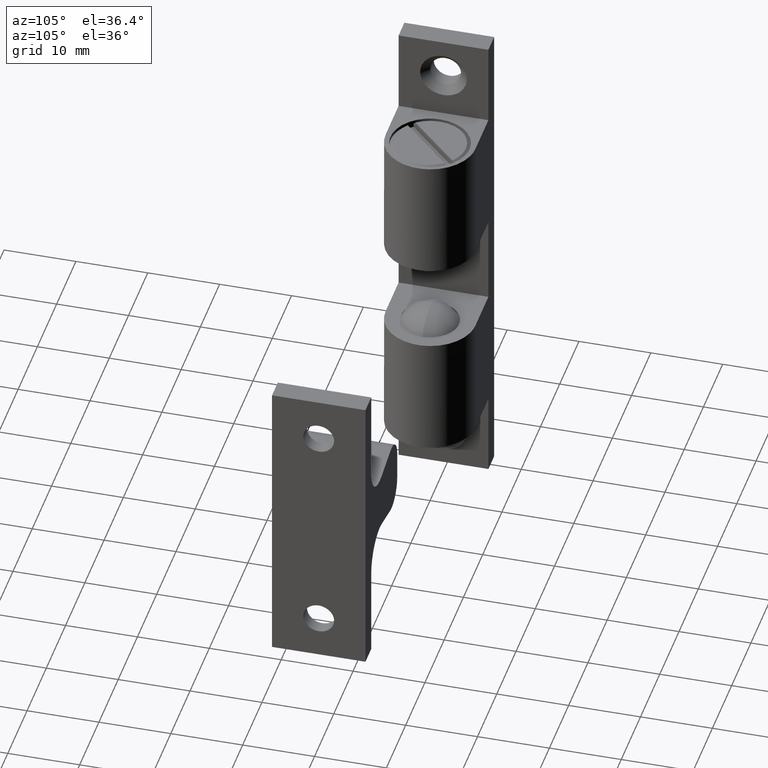
[diagram: clean part render]
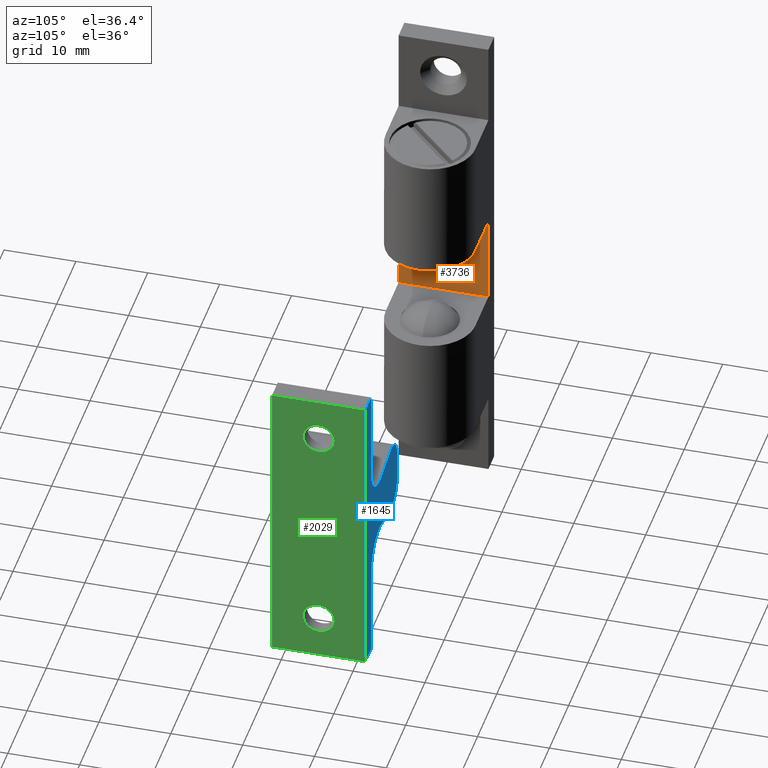
[diagram: same view with three faces highlighted in distinct colors, each labeled with its STEP entity id]
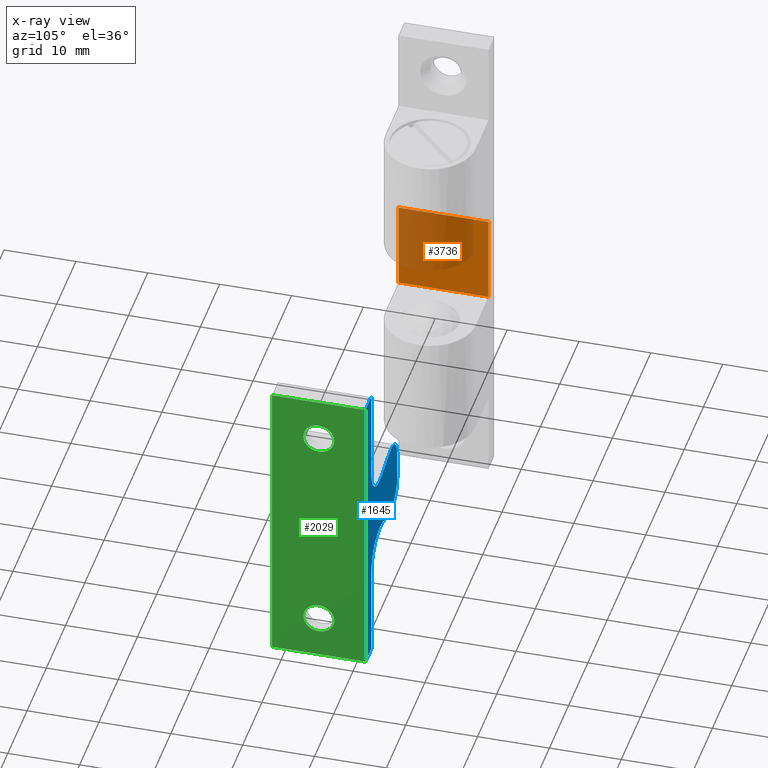
[diagram: x-ray of the same camera — body ghosted, the three highlighted faces saturated]
A machine part, auxiliary view with three faces highlighted in distinct colors.
The next image is the same camera in x-ray (body ghosted, the three faces saturated) — at least one of them is partly hidden behind the body in this view.
Their STEP definitions:

[orange] entity #3736 — the highlighted face is a freeform B-spline surface patch.
#3701=CARTESIAN_POINT('',(3.0,-6.874374975772575,6.874269863432652));
#3702=CARTESIAN_POINT('',(3.0,-6.874374975772575,-6.874370310463909));
#3703=CARTESIAN_POINT('',(3.0,6.874375311048702,6.874269863432652));
#3704=CARTESIAN_POINT('',(3.0,6.874375311048702,-6.874370310463909));
#3705=B_SPLINE_SURFACE_WITH_KNOTS('',1,1,((#3701,#3703),(#3702,#3704)),.UNSPECIFIED.,.F.,.F.,.U.,(2,2),(2,2),(0.0,13.748640173896559),(0.0,13.748750286821281),.UNSPECIFIED.);
#3706=CARTESIAN_POINT('',(3.0,6.250000000000000,6.249900000000000));
#3707=VERTEX_POINT('',#3706);
#3708=CARTESIAN_POINT('',(3.0,6.250000000000000,-6.250000000000000));
#3709=VERTEX_POINT('',#3708);
#3710=CARTESIAN_POINT('',(3.0,6.250000000000000,6.249900000000000));
#3711=CARTESIAN_POINT('',(3.0,6.250000000000000,-6.250000000000000));
#3712=QUASI_UNIFORM_CURVE('',1,(#3710,#3711),.UNSPECIFIED.,.F.,.U.);
#3713=EDGE_CURVE('',#3707,#3709,#3712,.T.);
#3714=ORIENTED_EDGE('',*,*,#3713,.F.);
#3715=CARTESIAN_POINT('',(3.0,-6.250000000000000,6.249900000000000));
#3716=VERTEX_POINT('',#3715);
#3717=CARTESIAN_POINT('',(3.0,-6.250000000000000,6.249900000000000));
#3718=CARTESIAN_POINT('',(3.0,6.250000000000000,6.249900000000000));
#3719=QUASI_UNIFORM_CURVE('',1,(#3717,#3718),.UNSPECIFIED.,.F.,.U.);
#3720=EDGE_CURVE('',#3716,#3707,#3719,.T.);
#3721=ORIENTED_EDGE('',*,*,#3720,.F.);
#3722=CARTESIAN_POINT('',(3.0,-6.250000000000000,-6.250000000000000));
#3723=VERTEX_POINT('',#3722);
#3724=CARTESIAN_POINT('',(3.0,-6.250000000000000,6.249900000000000));
#3725=CARTESIAN_POINT('',(3.0,-6.250000000000000,-6.250000000000000));
#3726=QUASI_UNIFORM_CURVE('',1,(#3724,#3725),.UNSPECIFIED.,.F.,.U.);
#3727=EDGE_CURVE('',#3716,#3723,#3726,.T.);
#3728=ORIENTED_EDGE('',*,*,#3727,.T.);
#3729=CARTESIAN_POINT('',(3.0,-6.250000000000000,-6.250000000000000));
#3730=CARTESIAN_POINT('',(3.0,6.250000000000000,-6.250000000000000));
#3731=QUASI_UNIFORM_CURVE('',1,(#3729,#3730),.UNSPECIFIED.,.F.,.U.);
#3732=EDGE_CURVE('',#3723,#3709,#3731,.T.);
#3733=ORIENTED_EDGE('',*,*,#3732,.T.);
#3734=EDGE_LOOP('',(#3714,#3721,#3728,#3733));
#3735=FACE_OUTER_BOUND('',#3734,.T.);
#3736=ADVANCED_FACE('',(#3735),#3705,.T.);

[blue] entity #1645 — the highlighted face is a freeform B-spline surface patch.
#1514=CARTESIAN_POINT('',(50.466134724906070,6.500000000000000,23.097796106391069));
#1515=CARTESIAN_POINT('',(68.614488997723598,6.500000000000000,23.097796106391069));
#1516=CARTESIAN_POINT('',(50.466134724906070,6.500000000000000,-23.097896106391079));
#1517=CARTESIAN_POINT('',(68.614488997723598,6.500000000000000,-23.097896106391079));
#1518=B_SPLINE_SURFACE_WITH_KNOTS('',1,1,((#1514,#1516),(#1515,#1517)),.UNSPECIFIED.,.F.,.F.,.U.,(2,2),(2,2),(0.0,18.148354272817532),(0.0,46.195692212782141),.UNSPECIFIED.);
#1519=CARTESIAN_POINT('',(54.938705783282600,6.500000000000000,-4.929092738337640));
#1520=VERTEX_POINT('',#1519);
#1521=CARTESIAN_POINT('',(59.361311049946799,6.500000000000000,-3.996800000000000));
#1522=VERTEX_POINT('',#1521);
#1523=CARTESIAN_POINT('',(54.938705783282600,6.500000000000000,-4.929092738337640));
#1524=CARTESIAN_POINT('',(59.361311049946799,6.500000000000000,-3.996800000000000));
#1525=QUASI_UNIFORM_CURVE('',1,(#1523,#1524),.UNSPECIFIED.,.F.,.U.);
#1526=EDGE_CURVE('',#1520,#1522,#1525,.T.);
#1527=ORIENTED_EDGE('',*,*,#1526,.F.);
#1528=CARTESIAN_POINT('',(51.290311049946602,6.500000000000000,-2.0));
#1529=VERTEX_POINT('',#1528);
#1530=CARTESIAN_POINT('',(51.290311049946702,6.500000000000000,-2.0));
#1531=CARTESIAN_POINT('',(51.290311049946695,6.500000000000000,-3.438677927375774));
#1532=CARTESIAN_POINT('',(52.412171571634147,6.500000000000000,-4.339357198036215));
#1533=CARTESIAN_POINT('',(53.534032093321599,6.500000000000000,-5.240036468696657));
#1534=CARTESIAN_POINT('',(54.938705783282600,6.500000000000000,-4.929092738337635));
#1542=(BOUNDED_CURVE()B_SPLINE_CURVE(2,(#1530,#1531,#1532,#1533,#1534),.UNSPECIFIED.,.F.,.U.)B_SPLINE_CURVE_WITH_KNOTS((3,2,3),(0.0,0.500000000000000,1.0),.UNSPECIFIED.)CURVE()GEOMETRIC_REPRESENTATION_ITEM()RATIONAL_B_SPLINE_CURVE((1.0,0.901678017024606,1.0,0.901678017024606,1.0))REPRESENTATION_ITEM(''));
#1543=EDGE_CURVE('',#1529,#1520,#1542,.T.);
#1544=ORIENTED_EDGE('',*,*,#1543,.F.);
#1545=CARTESIAN_POINT('',(51.290311049946702,6.500000000000000,1.999900000000000));
#1546=VERTEX_POINT('',#1545);
#1547=CARTESIAN_POINT('',(51.290311049946702,6.500000000000000,1.999900000000000));
#1548=CARTESIAN_POINT('',(51.290311049946602,6.500000000000000,-2.0));
#1549=QUASI_UNIFORM_CURVE('',1,(#1547,#1548),.UNSPECIFIED.,.F.,.U.);
#1550=EDGE_CURVE('',#1546,#1529,#1549,.T.);
#1551=ORIENTED_EDGE('',*,*,#1550,.F.);
#1552=CARTESIAN_POINT('',(54.908311108268698,6.500000000000000,4.935899987701701));
#1553=VERTEX_POINT('',#1552);
#1554=CARTESIAN_POINT('',(54.908311108268698,6.500000000000000,4.935899987701693));
#1555=CARTESIAN_POINT('',(53.509605669594599,6.500000000000000,5.230843741620612));
#1556=CARTESIAN_POINT('',(52.399634177030002,6.500000000000000,4.330104041237539));
#1557=CARTESIAN_POINT('',(51.289662684465398,6.500000000000000,3.429364340854467));
#1558=CARTESIAN_POINT('',(51.290311049946681,6.500000000000000,1.999900000000003));
#1566=(BOUNDED_CURVE()B_SPLINE_CURVE(2,(#1554,#1555,#1556,#1557,#1558),.UNSPECIFIED.,.F.,.U.)B_SPLINE_CURVE_WITH_KNOTS((3,2,3),(0.0,0.500000000000000,1.0),.UNSPECIFIED.)CURVE()GEOMETRIC_REPRESENTATION_ITEM()RATIONAL_B_SPLINE_CURVE((1.0,0.902710255952973,1.0,0.902710255952973,1.0))REPRESENTATION_ITEM(''));
#1567=EDGE_CURVE('',#1553,#1546,#1566,.T.);
#1568=ORIENTED_EDGE('',*,*,#1567,.F.);
#1569=CARTESIAN_POINT('',(59.338878029489301,6.500000000000000,4.001630430318795));
#1570=VERTEX_POINT('',#1569);
#1571=CARTESIAN_POINT('',(59.338878029489301,6.500000000000000,4.001630430318795));
#1572=CARTESIAN_POINT('',(54.908311108268698,6.500000000000000,4.935899987701701));
#1573=QUASI_UNIFORM_CURVE('',1,(#1571,#1572),.UNSPECIFIED.,.F.,.U.);
#1574=EDGE_CURVE('',#1570,#1553,#1573,.T.);
#1575=ORIENTED_EDGE('',*,*,#1574,.F.);
#1576=CARTESIAN_POINT('',(64.790311049946709,6.500000000000000,8.399900000000001));
#1577=VERTEX_POINT('',#1576);
#1578=CARTESIAN_POINT('',(59.338878029489301,6.500000000000000,4.001630430318818));
#1579=CARTESIAN_POINT('',(61.441603186784363,6.500000000000000,3.546769236410277));
#1580=CARTESIAN_POINT('',(63.115957118365493,6.500000000000000,4.897654392389232));
#1581=CARTESIAN_POINT('',(64.790311049946610,6.500000000000000,6.248539548368188));
#1582=CARTESIAN_POINT('',(64.790311049946610,6.500000000000000,8.399900000000001));
#1590=(BOUNDED_CURVE()B_SPLINE_CURVE(2,(#1578,#1579,#1580,#1581,#1582),.UNSPECIFIED.,.F.,.U.)B_SPLINE_CURVE_WITH_KNOTS((3,2,3),(0.0,0.500000000000000,1.0),.UNSPECIFIED.)CURVE()GEOMETRIC_REPRESENTATION_ITEM()RATIONAL_B_SPLINE_CURVE((1.0,0.902197691345286,1.0,0.902197691345286,1.0))REPRESENTATION_ITEM(''));
#1591=EDGE_CURVE('',#1570,#1577,#1590,.T.);
#1592=ORIENTED_EDGE('',*,*,#1591,.T.);
#1593=CARTESIAN_POINT('',(64.790311049946709,6.500000000000000,20.999900000000000));
#1594=VERTEX_POINT('',#1593);
#1595=CARTESIAN_POINT('',(64.790311049946709,6.500000000000000,20.999900000000000));
#1596=CARTESIAN_POINT('',(64.790311049946709,6.500000000000000,8.399900000000001));
#1597=QUASI_UNIFORM_CURVE('',1,(#1595,#1596),.UNSPECIFIED.,.F.,.U.);
#1598=EDGE_CURVE('',#1594,#1577,#1597,.T.);
#1599=ORIENTED_EDGE('',*,*,#1598,.F.);
#1600=CARTESIAN_POINT('',(67.790311049946610,6.500000000000000,20.999900000000000));
#1601=VERTEX_POINT('',#1600);
#1602=CARTESIAN_POINT('',(67.790311049946610,6.500000000000000,20.999900000000000));
#1603=CARTESIAN_POINT('',(64.790311049946709,6.500000000000000,20.999900000000000));
#1604=QUASI_UNIFORM_CURVE('',1,(#1602,#1603),.UNSPECIFIED.,.F.,.U.);
#1605=EDGE_CURVE('',#1601,#1594,#1604,.T.);
#1606=ORIENTED_EDGE('',*,*,#1605,.F.);
#1607=CARTESIAN_POINT('',(67.790311049946610,6.500000000000000,-21.0));
#1608=VERTEX_POINT('',#1607);
#1609=CARTESIAN_POINT('',(67.790311049946610,6.500000000000000,-21.0));
#1610=CARTESIAN_POINT('',(67.790311049946610,6.500000000000000,20.999900000000000));
#1611=QUASI_UNIFORM_CURVE('',1,(#1609,#1610),.UNSPECIFIED.,.F.,.U.);
#1612=EDGE_CURVE('',#1608,#1601,#1611,.T.);
#1613=ORIENTED_EDGE('',*,*,#1612,.F.);
#1614=CARTESIAN_POINT('',(64.790311049946709,6.500000000000000,-21.0));
#1615=VERTEX_POINT('',#1614);
#1616=CARTESIAN_POINT('',(64.790311049946709,6.500000000000000,-21.0));
#1617=CARTESIAN_POINT('',(67.790311049946610,6.500000000000000,-21.0));
#1618=QUASI_UNIFORM_CURVE('',1,(#1616,#1617),.UNSPECIFIED.,.F.,.U.);
#1619=EDGE_CURVE('',#1615,#1608,#1618,.T.);
#1620=ORIENTED_EDGE('',*,*,#1619,.F.);
#1621=CARTESIAN_POINT('',(64.790311049946510,6.500000000000000,-8.400000000000000));
#1622=VERTEX_POINT('',#1621);
#1623=CARTESIAN_POINT('',(64.790311049946510,6.500000000000000,-8.400000000000000));
#1624=CARTESIAN_POINT('',(64.790311049946709,6.500000000000000,-21.0));
#1625=QUASI_UNIFORM_CURVE('',1,(#1623,#1624),.UNSPECIFIED.,.F.,.U.);
#1626=EDGE_CURVE('',#1622,#1615,#1625,.T.);
#1627=ORIENTED_EDGE('',*,*,#1626,.F.);
#1628=CARTESIAN_POINT('',(64.790311049946510,6.500000000000000,-8.400000000000000));
#1629=CARTESIAN_POINT('',(64.789991045522967,6.500000000000000,-6.255822390385037));
#1630=CARTESIAN_POINT('',(63.124685053708873,6.500000000000000,-4.905173036331577));
#1631=CARTESIAN_POINT('',(61.459379061894772,6.500000000000000,-3.554523682278117));
#1632=CARTESIAN_POINT('',(59.361311049946799,6.500000000000000,-3.996799999999991));
#1640=(BOUNDED_CURVE()B_SPLINE_CURVE(2,(#1628,#1629,#1630,#1631,#1632),.UNSPECIFIED.,.F.,.U.)B_SPLINE_CURVE_WITH_KNOTS((3,2,3),(0.0,0.500000000000000,1.0),.UNSPECIFIED.)CURVE()GEOMETRIC_REPRESENTATION_ITEM()RATIONAL_B_SPLINE_CURVE((1.0,0.902782023835910,1.0,0.902782023835910,1.0))REPRESENTATION_ITEM(''));
#1641=EDGE_CURVE('',#1622,#1522,#1640,.T.);
#1642=ORIENTED_EDGE('',*,*,#1641,.T.);
#1643=EDGE_LOOP('',(#1527,#1544,#1551,#1568,#1575,#1592,#1599,#1606,#1613,#1620,#1627,#1642));
#1644=FACE_OUTER_BOUND('',#1643,.T.);
#1645=ADVANCED_FACE('',(#1644),#1518,.T.);

[green] entity #2029 — the highlighted face is a freeform B-spline surface patch.
#888=CARTESIAN_POINT('',(67.790311049946610,0.0,-12.849900000000000));
#889=VERTEX_POINT('',#888);
#890=CARTESIAN_POINT('',(67.790311049946610,-1.227306499858824,-13.234618505335691));
#891=VERTEX_POINT('',#890);
#892=CARTESIAN_POINT('',(67.790311049946610,0.0,-12.849900000000000));
#893=CARTESIAN_POINT('',(67.790311049946610,-0.673951279953933,-12.849900000000005));
#894=CARTESIAN_POINT('',(67.790311049946610,-1.227306499858823,-13.234618505335687));
#902=(BOUNDED_CURVE()B_SPLINE_CURVE(2,(#892,#893,#894),.UNSPECIFIED.,.F.,.U.)B_SPLINE_CURVE_WITH_KNOTS((3,3),(0.500000000000000,0.598090608939549),.UNSPECIFIED.)CURVE()GEOMETRIC_REPRESENTATION_ITEM()RATIONAL_B_SPLINE_CURVE((1.0,0.885079703249295,0.860340221600913))REPRESENTATION_ITEM(''));
#903=EDGE_CURVE('',#889,#891,#902,.T.);
#976=CARTESIAN_POINT('',(67.790311049946610,-2.143372267502470,-14.831212943883299));
#977=VERTEX_POINT('',#976);
#983=CARTESIAN_POINT('',(67.790311049946610,0.0,-17.149899999999999));
#984=VERTEX_POINT('',#983);
#985=CARTESIAN_POINT('',(67.790311049946610,-2.143372267502470,-14.831212943883301));
#986=CARTESIAN_POINT('',(67.790311049946610,-2.149999999999999,-14.915426269630276));
#987=CARTESIAN_POINT('',(67.790311049946610,-2.150000000000000,-14.999900000000000));
#988=CARTESIAN_POINT('',(67.790311049946610,-2.150000000000000,-17.149899999999999));
#989=CARTESIAN_POINT('',(67.790311049946610,0.0,-17.149899999999999));
#997=(BOUNDED_CURVE()B_SPLINE_CURVE(2,(#985,#986,#987,#988,#989),.UNSPECIFIED.,.F.,.U.)B_SPLINE_CURVE_WITH_KNOTS((3,2,3),(0.736331300584486,0.750000000000000,1.0),.UNSPECIFIED.)CURVE()GEOMETRIC_REPRESENTATION_ITEM()RATIONAL_B_SPLINE_CURVE((0.969723356071058,0.983986122524787,1.0,0.707106781186547,1.0))REPRESENTATION_ITEM(''));
#998=EDGE_CURVE('',#977,#984,#997,.T.);
#1000=CARTESIAN_POINT('',(67.790311049946610,0.0,-17.149899999999999));
#1001=CARTESIAN_POINT('',(67.790311049946610,2.150000000000000,-17.149899999999999));
#1002=CARTESIAN_POINT('',(67.790311049946610,2.150000000000000,-14.999900000000000));
#1003=CARTESIAN_POINT('',(67.790311049946610,2.150000000000000,-12.849900000000002));
#1004=CARTESIAN_POINT('',(67.790311049946610,0.0,-12.849900000000000));
#1012=(BOUNDED_CURVE()B_SPLINE_CURVE(2,(#1000,#1001,#1002,#1003,#1004),.UNSPECIFIED.,.F.,.U.)B_SPLINE_CURVE_WITH_KNOTS((3,2,3),(0.0,0.250000000000000,0.500000000000000),.UNSPECIFIED.)CURVE()GEOMETRIC_REPRESENTATION_ITEM()RATIONAL_B_SPLINE_CURVE((1.0,0.707106781186547,1.0,0.707106781186547,1.0))REPRESENTATION_ITEM(''));
#1013=EDGE_CURVE('',#984,#889,#1012,.T.);
#1032=CARTESIAN_POINT('',(67.790311049946610,-1.227306499858824,-13.234618505335680));
#1033=CARTESIAN_POINT('',(67.790311049946595,-2.063470017910840,-13.815958605346832));
#1034=CARTESIAN_POINT('',(67.790311049946610,-2.143372267502471,-14.831212943883298));
#1042=(BOUNDED_CURVE()B_SPLINE_CURVE(2,(#1032,#1033,#1034),.UNSPECIFIED.,.F.,.U.)B_SPLINE_CURVE_WITH_KNOTS((3,3),(0.598090608939549,0.736331300584486),.UNSPECIFIED.)CURVE()GEOMETRIC_REPRESENTATION_ITEM()RATIONAL_B_SPLINE_CURVE((0.860340221600914,0.825474467468249,0.969723356071057))REPRESENTATION_ITEM(''));
#1043=EDGE_CURVE('',#891,#977,#1042,.T.);
#1236=CARTESIAN_POINT('',(67.790311049946610,-2.145989816597822,14.868645639849760));
#1237=VERTEX_POINT('',#1236);
#1243=CARTESIAN_POINT('',(67.790311049946610,0.0,12.849900000000000));
#1244=VERTEX_POINT('',#1243);
#1245=CARTESIAN_POINT('',(67.790311049946610,0.0,12.849900000000000));
#1246=CARTESIAN_POINT('',(67.790311049946595,-2.022518043563422,12.849900000000002));
#1247=CARTESIAN_POINT('',(67.790311049946610,-2.145989816597822,14.868645639849769));
#1255=(BOUNDED_CURVE()B_SPLINE_CURVE(2,(#1245,#1246,#1247),.UNSPECIFIED.,.F.,.U.)B_SPLINE_CURVE_WITH_KNOTS((3,3),(0.500000000000000,0.739332962217800),.UNSPECIFIED.)CURVE()GEOMETRIC_REPRESENTATION_ITEM()RATIONAL_B_SPLINE_CURVE((1.0,0.719603993311481,0.976072041621404))REPRESENTATION_ITEM(''));
#1256=EDGE_CURVE('',#1244,#1237,#1255,.T.);
#1258=CARTESIAN_POINT('',(67.790311049946610,0.755978645005292,12.987191305653999));
#1259=VERTEX_POINT('',#1258);
#1260=CARTESIAN_POINT('',(67.790311049946610,0.755978645005292,12.987191305654003));
#1261=CARTESIAN_POINT('',(67.790311049946610,0.390455880113507,12.849900000000002));
#1262=CARTESIAN_POINT('',(67.790311049946610,0.0,12.849900000000000));
#1270=(BOUNDED_CURVE()B_SPLINE_CURVE(2,(#1260,#1261,#1262),.UNSPECIFIED.,.F.,.U.)B_SPLINE_CURVE_WITH_KNOTS((3,3),(0.440284170888957,0.500000000000000),.UNSPECIFIED.)CURVE()GEOMETRIC_REPRESENTATION_ITEM()RATIONAL_B_SPLINE_CURVE((0.893499554623586,0.930038554390210,1.0))REPRESENTATION_ITEM(''));
#1271=EDGE_CURVE('',#1259,#1244,#1270,.T.);
#1321=CARTESIAN_POINT('',(67.790311049946610,0.0,17.149899999999999));
#1322=VERTEX_POINT('',#1321);
#1323=CARTESIAN_POINT('',(67.790311049946610,0.0,17.149899999999999));
#1324=CARTESIAN_POINT('',(67.790311049946610,2.150000000000000,17.149899999999999));
#1325=CARTESIAN_POINT('',(67.790311049946610,2.150000000000000,14.999900000000000));
#1326=CARTESIAN_POINT('',(67.790311049946610,2.150000000000000,13.510789369357234));
#1327=CARTESIAN_POINT('',(67.790311049946610,0.755978645005292,12.987191305654012));
#1335=(BOUNDED_CURVE()B_SPLINE_CURVE(2,(#1323,#1324,#1325,#1326,#1327),.UNSPECIFIED.,.F.,.U.)B_SPLINE_CURVE_WITH_KNOTS((3,2,3),(0.0,0.250000000000000,0.440284170888957),.UNSPECIFIED.)CURVE()GEOMETRIC_REPRESENTATION_ITEM()RATIONAL_B_SPLINE_CURVE((1.0,0.707106781186547,1.0,0.777068226796337,0.893499554623586))REPRESENTATION_ITEM(''));
#1336=EDGE_CURVE('',#1322,#1259,#1335,.T.);
#1338=CARTESIAN_POINT('',(67.790311049946610,-2.145989816597822,14.868645639849763));
#1339=CARTESIAN_POINT('',(67.790311049946610,-2.150000000000000,14.934211558757319));
#1340=CARTESIAN_POINT('',(67.790311049946610,-2.150000000000000,14.999900000000000));
#1341=CARTESIAN_POINT('',(67.790311049946610,-2.150000000000000,17.149899999999999));
#1342=CARTESIAN_POINT('',(67.790311049946610,0.0,17.149899999999999));
#1350=(BOUNDED_CURVE()B_SPLINE_CURVE(2,(#1338,#1339,#1340,#1341,#1342),.UNSPECIFIED.,.F.,.U.)B_SPLINE_CURVE_WITH_KNOTS((3,2,3),(0.739332962217800,0.750000000000000,1.0),.UNSPECIFIED.)CURVE()GEOMETRIC_REPRESENTATION_ITEM()RATIONAL_B_SPLINE_CURVE((0.976072041621404,0.987502787875067,1.0,0.707106781186547,1.0))REPRESENTATION_ITEM(''));
#1351=EDGE_CURVE('',#1237,#1322,#1350,.T.);
#1600=CARTESIAN_POINT('',(67.790311049946610,6.500000000000000,20.999900000000000));
#1601=VERTEX_POINT('',#1600);
#1607=CARTESIAN_POINT('',(67.790311049946610,6.500000000000000,-21.0));
#1608=VERTEX_POINT('',#1607);
#1609=CARTESIAN_POINT('',(67.790311049946610,6.500000000000000,-21.0));
#1610=CARTESIAN_POINT('',(67.790311049946610,6.500000000000000,20.999900000000000));
#1611=QUASI_UNIFORM_CURVE('',1,(#1609,#1610),.UNSPECIFIED.,.F.,.U.);
#1612=EDGE_CURVE('',#1608,#1601,#1611,.T.);
#1684=CARTESIAN_POINT('',(67.790311049946610,-6.500000000000000,-21.0));
#1685=VERTEX_POINT('',#1684);
#1691=CARTESIAN_POINT('',(67.790311049946610,-6.500000000000000,20.999900000000000));
#1692=VERTEX_POINT('',#1691);
#1693=CARTESIAN_POINT('',(67.790311049946610,-6.500000000000000,-21.0));
#1694=CARTESIAN_POINT('',(67.790311049946610,-6.500000000000000,20.999900000000000));
#1695=QUASI_UNIFORM_CURVE('',1,(#1693,#1694),.UNSPECIFIED.,.F.,.U.);
#1696=EDGE_CURVE('',#1685,#1692,#1695,.T.);
#1901=CARTESIAN_POINT('',(67.790311049946610,-6.500000000000000,20.999900000000000));
#1902=CARTESIAN_POINT('',(67.790311049946610,6.500000000000000,20.999900000000000));
#1903=QUASI_UNIFORM_CURVE('',1,(#1901,#1902),.UNSPECIFIED.,.F.,.U.);
#1904=EDGE_CURVE('',#1692,#1601,#1903,.T.);
#1915=CARTESIAN_POINT('',(67.790311049946610,-6.500000000000000,-21.0));
#1916=CARTESIAN_POINT('',(67.790311049946610,6.500000000000000,-21.0));
#1917=QUASI_UNIFORM_CURVE('',1,(#1915,#1916),.UNSPECIFIED.,.F.,.U.);
#1918=EDGE_CURVE('',#1685,#1608,#1917,.T.);
#2006=CARTESIAN_POINT('',(67.790311049946610,-7.149349974803478,-23.097894923596051));
#2007=CARTESIAN_POINT('',(67.790311049946610,-7.149349974803478,23.097796050121140));
#2008=CARTESIAN_POINT('',(67.790311049946610,7.149350323490650,-23.097894923596051));
#2009=CARTESIAN_POINT('',(67.790311049946610,7.149350323490650,23.097796050121140));
#2010=B_SPLINE_SURFACE_WITH_KNOTS('',1,1,((#2006,#2008),(#2007,#2009)),.UNSPECIFIED.,.F.,.F.,.U.,(2,2),(2,2),(0.0,46.195690973717191),(0.0,14.298700298294129),.UNSPECIFIED.);
#2011=ORIENTED_EDGE('',*,*,#1612,.T.);
#2012=ORIENTED_EDGE('',*,*,#1904,.F.);
#2013=ORIENTED_EDGE('',*,*,#1696,.F.);
#2014=ORIENTED_EDGE('',*,*,#1918,.T.);
#2015=EDGE_LOOP('',(#2011,#2012,#2013,#2014));
#2016=FACE_OUTER_BOUND('',#2015,.T.);
#2017=ORIENTED_EDGE('',*,*,#1013,.F.);
#2018=ORIENTED_EDGE('',*,*,#998,.F.);
#2019=ORIENTED_EDGE('',*,*,#1043,.F.);
#2020=ORIENTED_EDGE('',*,*,#903,.F.);
#2021=EDGE_LOOP('',(#2017,#2018,#2019,#2020));
#2022=FACE_BOUND('',#2021,.T.);
#2023=ORIENTED_EDGE('',*,*,#1256,.T.);
#2024=ORIENTED_EDGE('',*,*,#1351,.T.);
#2025=ORIENTED_EDGE('',*,*,#1336,.T.);
#2026=ORIENTED_EDGE('',*,*,#1271,.T.);
#2027=EDGE_LOOP('',(#2023,#2024,#2025,#2026));
#2028=FACE_BOUND('',#2027,.T.);
#2029=ADVANCED_FACE('',(#2016,#2022,#2028),#2010,.F.);